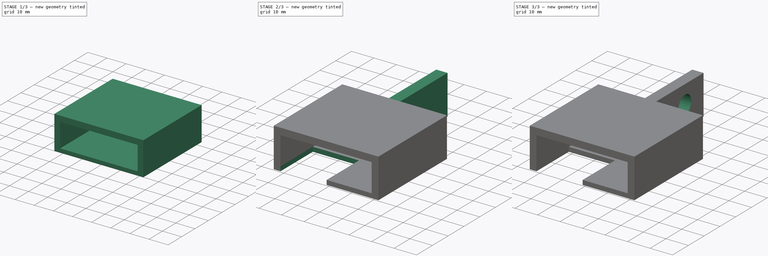
[diagram: build sequence overview — one tinted view per stage of 3, left to right]
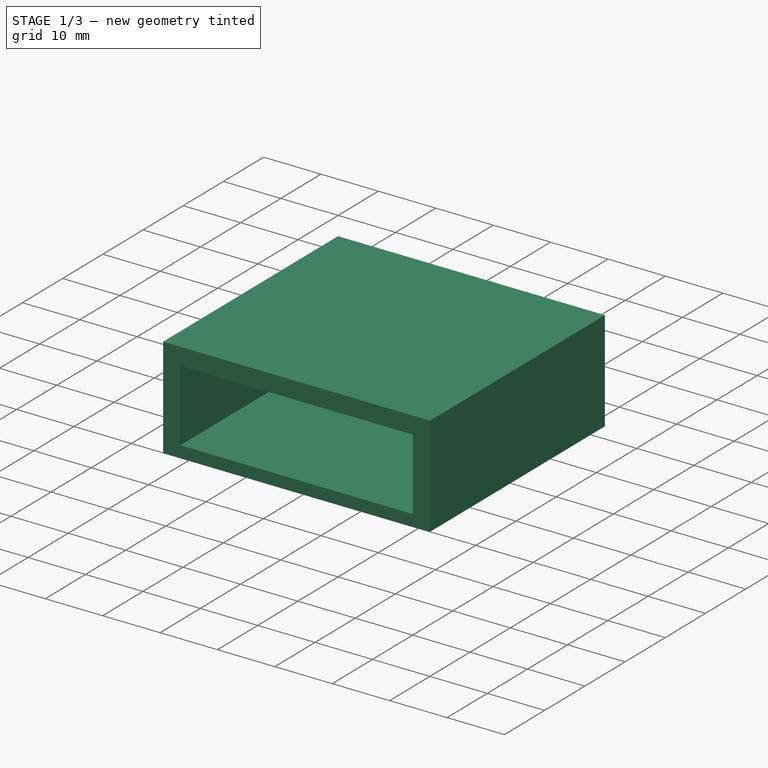
[diagram: stage 1 of 3 — iso view after this stage's code; geometry added in this stage tinted green]
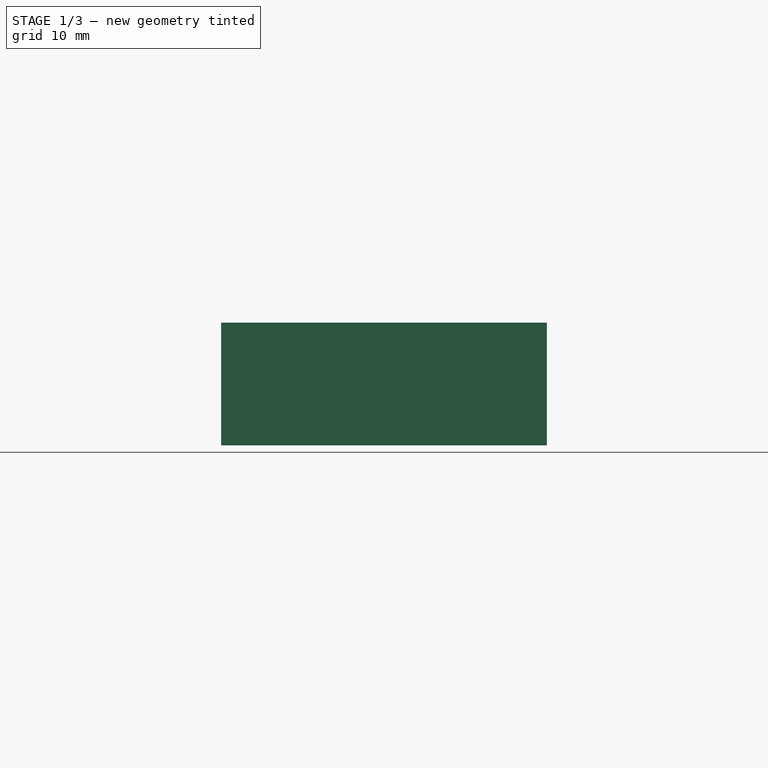
[diagram: stage 1 of 3 — front view after this stage's code; geometry added in this stage tinted green]
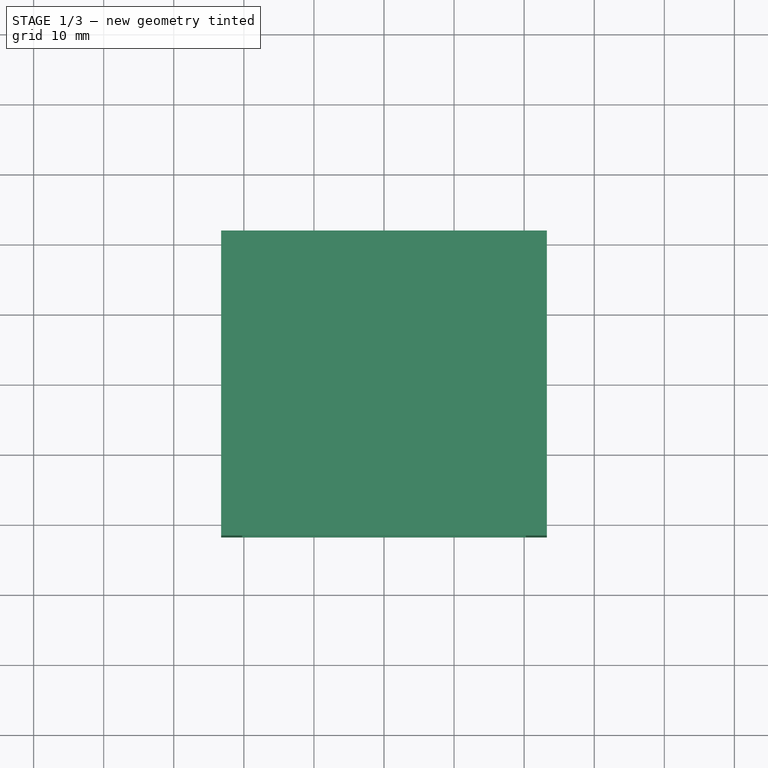
[diagram: stage 1 of 3 — top view after this stage's code; geometry added in this stage tinted green]
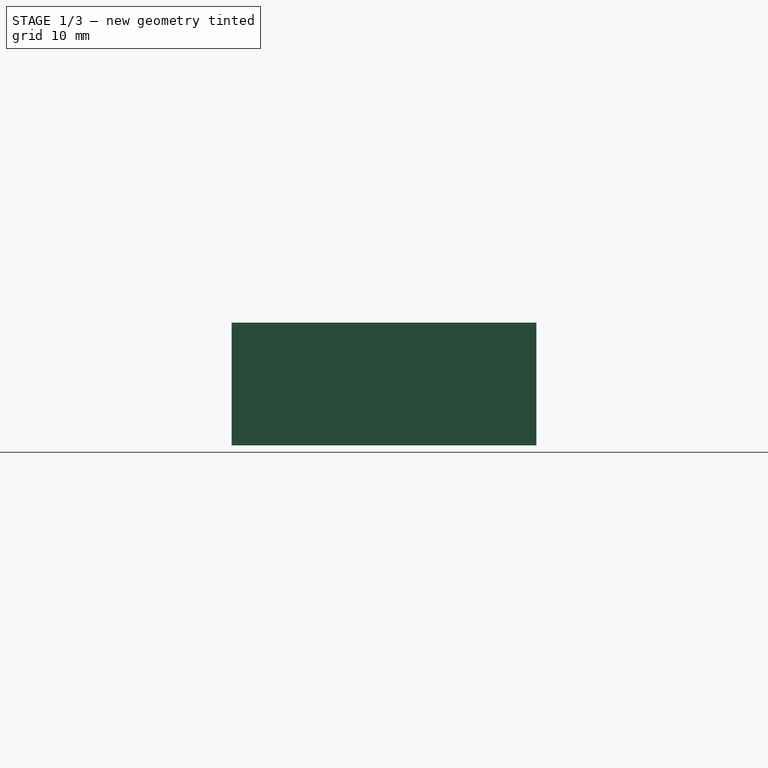
[diagram: stage 1 of 3 — right view after this stage's code; geometry added in this stage tinted green]
FCSTD DOCUMENT  (FreeCAD 0.18.4R)
Label: Peltier_Arm
License: All rights reserved
LicenseURL: http://en.wikipedia.org/wiki/All_rights_reserved
objects: Sketcher::SketchObject×5, PartDesign::Pocket×4, PartDesign::Pad×2, PartDesign::Body×1
note: 18 computed .brp shape members not serialized (recipe doc carries the construction recipe); baked Part::Feature solids carry a one-line shape summary decoded from their .brp

FEATURE [Sketcher::SketchObject] Sketch
  MapMode = 5
  Support = -> [XY_Plane]
  sketch-geometry (4):
    g0: LineSegment StartX=-23.25 StartY=21.75 StartZ=0 EndX=23.25 EndY=21.75 EndZ=0
    g1: LineSegment StartX=23.25 StartY=21.75 StartZ=0 EndX=23.25 EndY=-21.75 EndZ=0
    g2: LineSegment StartX=23.25 StartY=-21.75 StartZ=0 EndX=-23.25 EndY=-21.75 EndZ=0
    g3: LineSegment StartX=-23.25 StartY=-21.75 StartZ=0 EndX=-23.25 EndY=21.75 EndZ=0
  constraints (12):
    c: Coincident(g0,g1)
    c: Coincident(g1,g2)
    c: Coincident(g2,g3)
    c: Coincident(g3,g0)
    c: Horizontal(g0)
    c: Horizontal(g2)
    c: Vertical(g1)
    c: Vertical(g3)
    c: Distance(g0) = 46.5
    c: Distance(g1) = 43.5
    c: DistanceX(g0,g-1) = 23.25
    c: DistanceY(g1,g-1) = 21.75
FEATURE [PartDesign::Pad] Pad
  Length = 17.5
  Length2 = 100
  Profile = -> Sketch
  Type = 0
FEATURE [Sketcher::SketchObject] Sketch001
  MapMode = 5
  Placement = pos=(0,-21.75,0) rot=(1,0,0;1.5708rad)
  Support = -> [Pad]
  sketch-geometry (4):
    g0: LineSegment StartX=-20.25 StartY=14.5 StartZ=0 EndX=20.25 EndY=14.5 EndZ=0
    g1: LineSegment StartX=20.25 StartY=14.5 StartZ=0 EndX=20.25 EndY=2 EndZ=0
    g2: LineSegment StartX=20.25 StartY=2 StartZ=0 EndX=-20.25 EndY=2 EndZ=0
    g3: LineSegment StartX=-20.25 StartY=2 StartZ=0 EndX=-20.25 EndY=14.5 EndZ=0
  constraints (12):
    c: Coincident(g0,g1)
    c: Coincident(g1,g2)
    c: Coincident(g2,g3)
    c: Coincident(g3,g0)
    c: Horizontal(g0)
    c: Horizontal(g2)
    c: Vertical(g1)
    c: Vertical(g3)
    c: Distance(g0) = 40.5
    c: DistanceX(g2,g-1) = 20.25
    c: Distance(g1) = 12.5
    c: DistanceY(g-1,g1) = 2
FEATURE [PartDesign::Pocket] Pocket
  BaseFeature = -> Pad
  Length = 40.5
  Length2 = 100
  Profile = -> Sketch001
  Type = 0
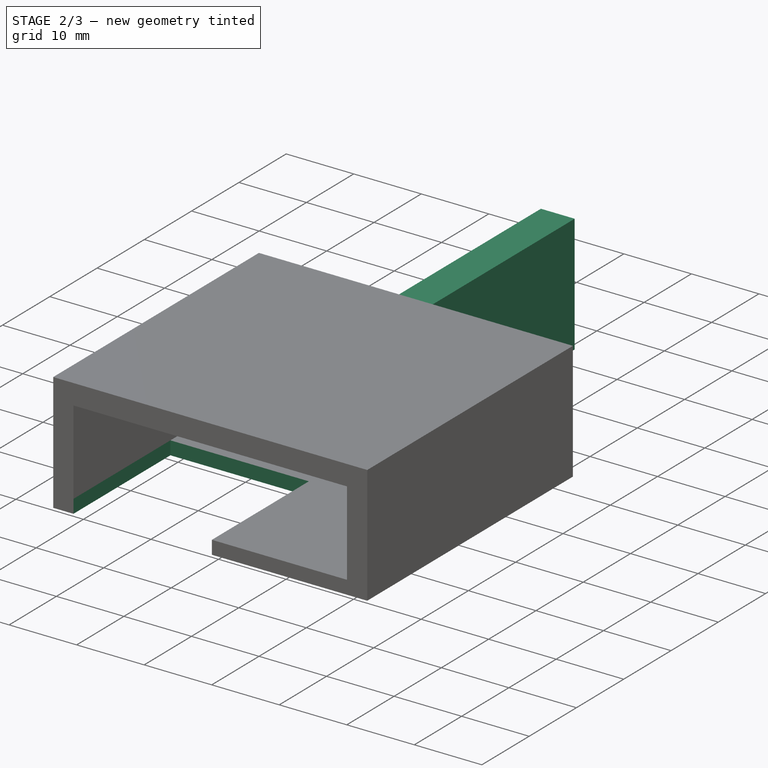
[diagram: stage 2 of 3 — iso view after this stage's code; geometry added in this stage tinted green]
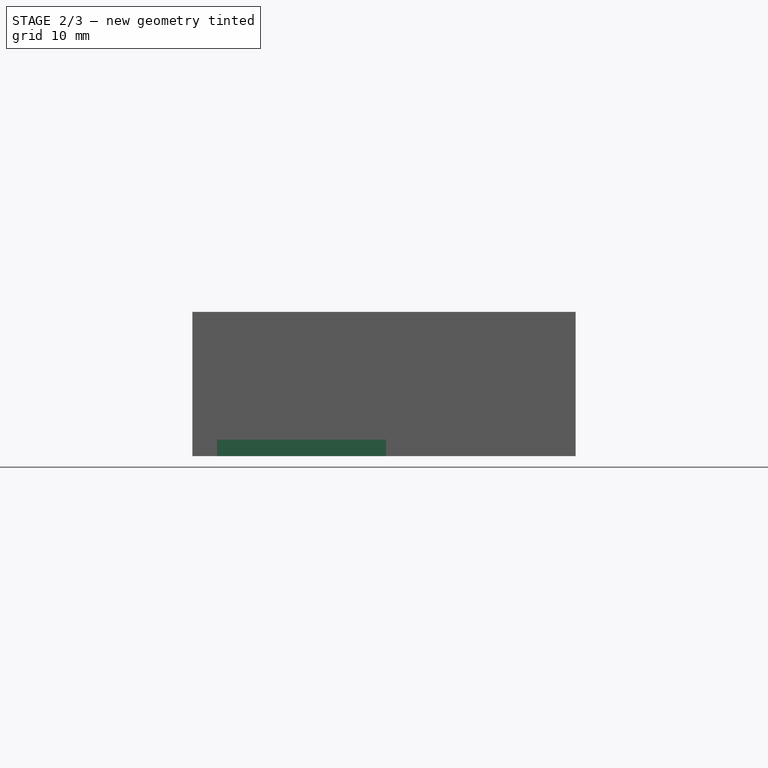
[diagram: stage 2 of 3 — front view after this stage's code; geometry added in this stage tinted green]
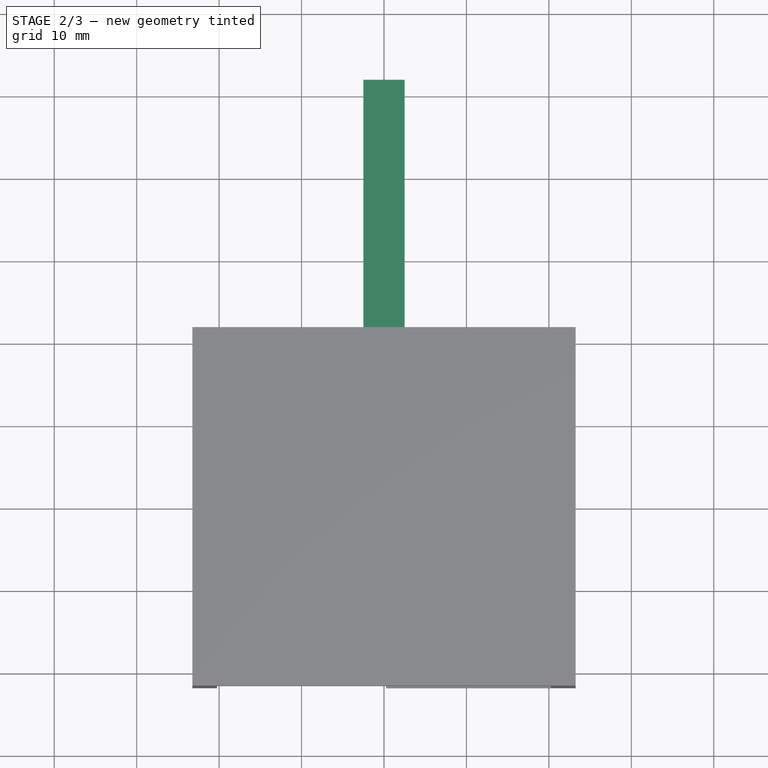
[diagram: stage 2 of 3 — top view after this stage's code; geometry added in this stage tinted green]
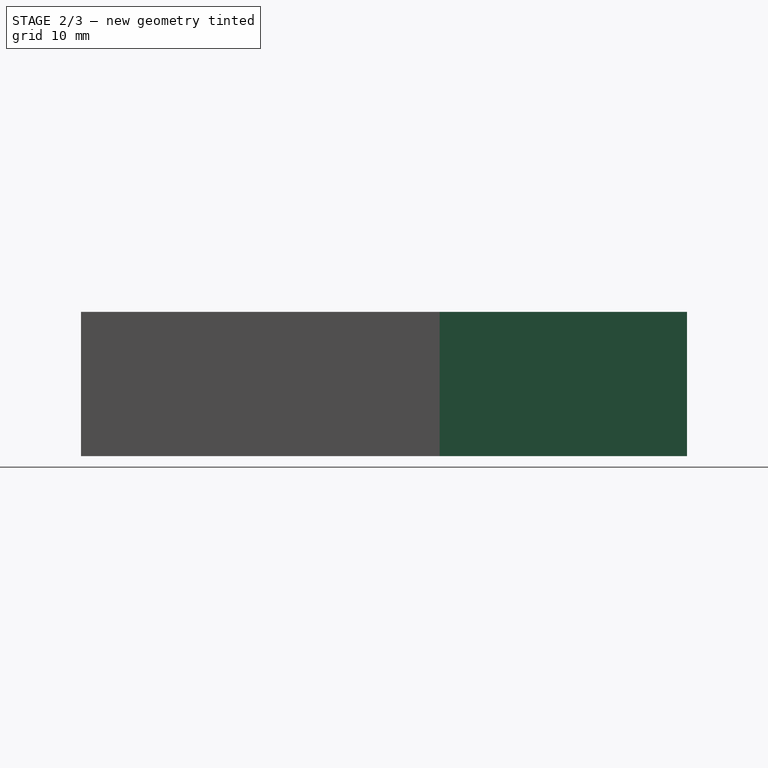
[diagram: stage 2 of 3 — right view after this stage's code; geometry added in this stage tinted green]
FEATURE [Sketcher::SketchObject] Sketch002
  MapMode = 5
  Placement = pos=(0,0,0) rot=(1,0,0;3.14159rad)
  Support = -> [Pocket]
  sketch-geometry (4):
    g0: LineSegment StartX=0.25 StartY=1.25 StartZ=0 EndX=-20.25 EndY=1.25 EndZ=0
    g1: LineSegment StartX=-20.25 StartY=1.25 StartZ=0 EndX=-20.25 EndY=21.75 EndZ=0
    g2: LineSegment StartX=-20.25 StartY=21.75 StartZ=0 EndX=0.25 EndY=21.75 EndZ=0
    g3: LineSegment StartX=0.25 StartY=21.75 StartZ=0 EndX=0.25 EndY=1.25 EndZ=0
  constraints (12):
    c: Coincident(g0,g1)
    c: Coincident(g1,g2)
    c: Coincident(g2,g3)
    c: Coincident(g3,g0)
    c: Horizontal(g0)
    c: Horizontal(g2)
    c: Vertical(g1)
    c: Vertical(g3)
    c: Distance(g0) = 20.5
    c: Distance(g1) = 20.5
    c: DistanceY(g-1,g1) = 21.75
    c: DistanceX(g-1,g0) = 0.25
FEATURE [PartDesign::Pocket] Pocket001
  BaseFeature = -> Pocket
  Length = 3
  Length2 = 100
  Profile = -> Sketch002
  Type = 0
FEATURE [Sketcher::SketchObject] Sketch003
  MapMode = 5
  Placement = pos=(0,0,17.5) rot=(0,0,1;0rad)
  Support = -> [Pocket001]
  sketch-geometry (4):
    g0: LineSegment StartX=-2.5 StartY=51.75 StartZ=0 EndX=2.5 EndY=51.75 EndZ=0
    g1: LineSegment StartX=2.5 StartY=51.75 StartZ=0 EndX=2.5 EndY=21.75 EndZ=0
    g2: LineSegment StartX=2.5 StartY=21.75 StartZ=0 EndX=-2.5 EndY=21.75 EndZ=0
    g3: LineSegment StartX=-2.5 StartY=21.75 StartZ=0 EndX=-2.5 EndY=51.75 EndZ=0
  constraints (12):
    c: Coincident(g0,g1)
    c: Coincident(g1,g2)
    c: Coincident(g2,g3)
    c: Coincident(g3,g0)
    c: Horizontal(g0)
    c: Horizontal(g2)
    c: Vertical(g1)
    c: Vertical(g3)
    c: Distance(g0) = 5
    c: DistanceY(g-1,g2) = 21.75
    c: DistanceX(g2,g-1) = 2.5
    c: Distance(g1) = 30
FEATURE [PartDesign::Pad] Pad001
  BaseFeature = -> Pocket001
  Length = 17.5
  Length2 = 100
  Profile = -> Sketch003
  Reversed = true
  Type = 0
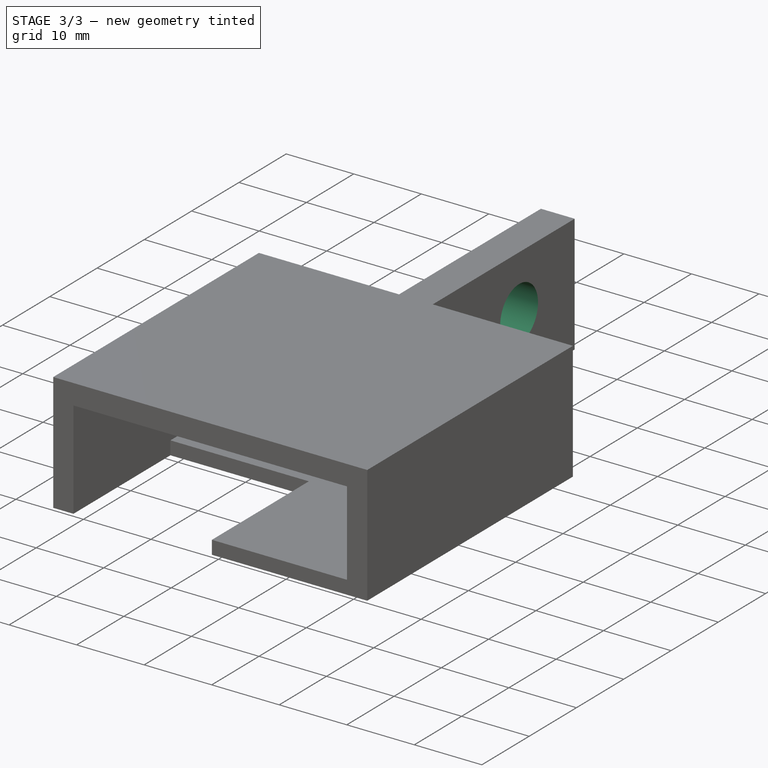
[diagram: stage 3 of 3 — iso view after this stage's code; geometry added in this stage tinted green]
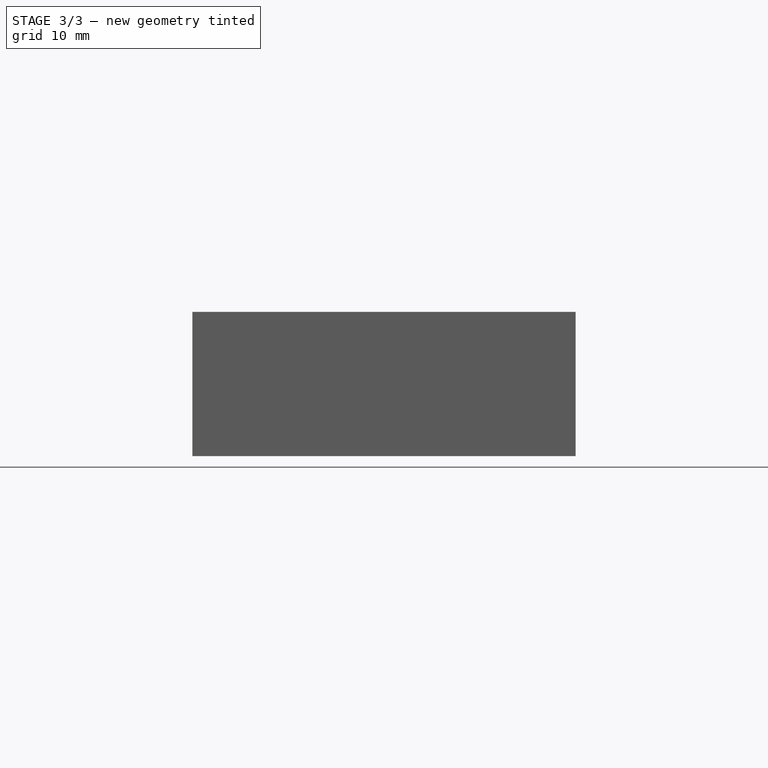
[diagram: stage 3 of 3 — front view after this stage's code; geometry added in this stage tinted green]
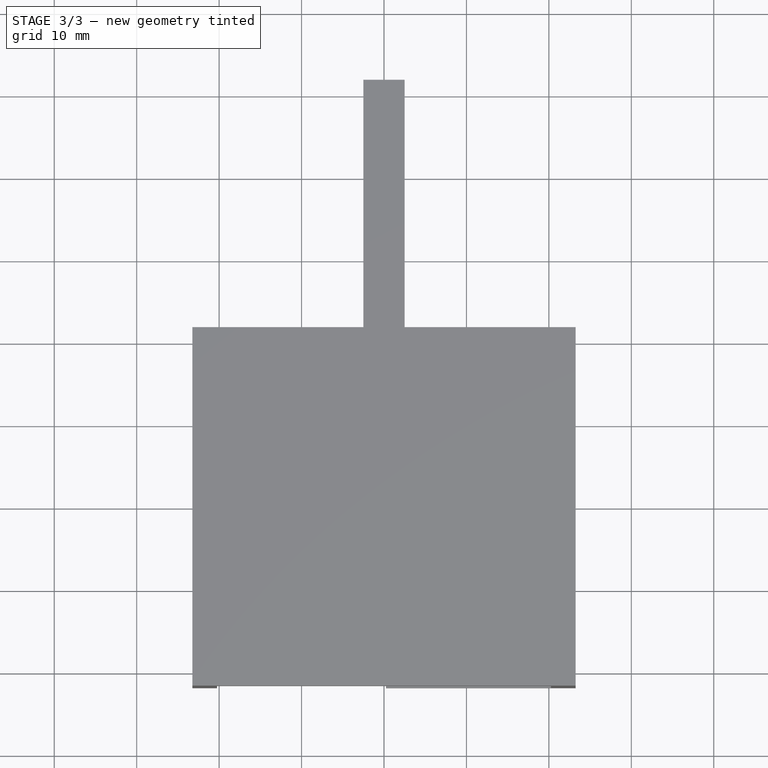
[diagram: stage 3 of 3 — top view after this stage's code; geometry added in this stage tinted green]
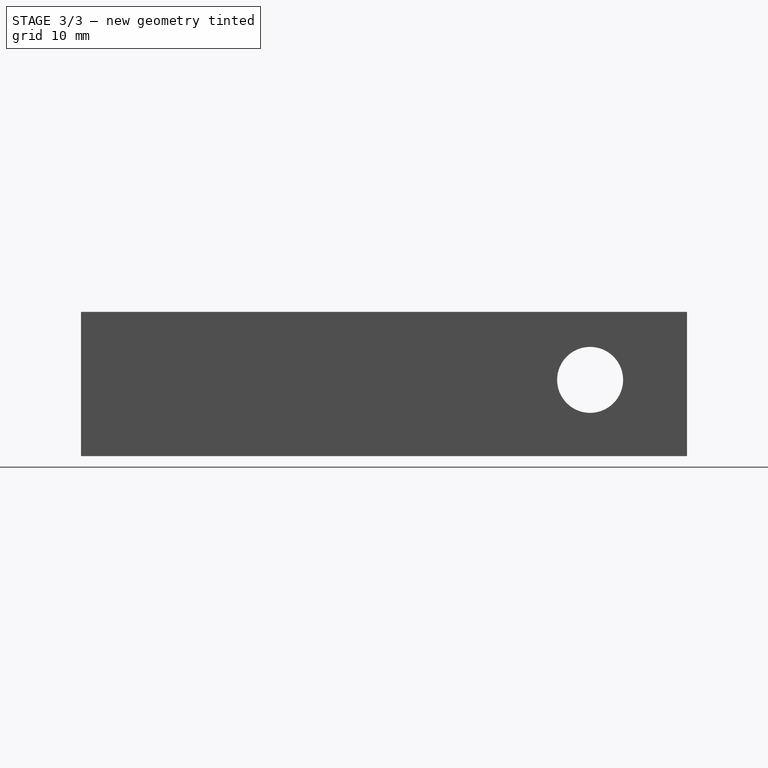
[diagram: stage 3 of 3 — right view after this stage's code; geometry added in this stage tinted green]
FEATURE [Sketcher::SketchObject] Sketch004
  MapMode = 5
  Placement = pos=(-20.25,0,0) rot=(0.57735,0.57735,0.57735;2.0944rad)
  Support = -> [Pad001]
  sketch-geometry (1):
    g0: Circle CenterX=40 CenterY=9.25 CenterZ=0 NormalX=0 NormalY=0 NormalZ=1 AngleXU=0 Radius=4
  constraints (3):
    c: Diameter(g0) = 8
    c: DistanceX(g-1,g0) = 40
    c: DistanceY(g-1,g0) = 9.25
FEATURE [PartDesign::Pocket] Pocket002
  BaseFeature = -> Pad001
  Length = 5
  Length2 = 100
  Profile = -> Sketch004
  Type = 0
FEATURE [PartDesign::Pocket] Pocket003
  BaseFeature = -> Pocket002
  Length = 100
  Length2 = 100
  Profile = -> Sketch004
  Reversed = true
  Type = 0
FEATURE [PartDesign::Body] Body
  Group = -> [Sketch,Pad,Sketch001,Pocket,Sketch002,Pocket001,Sketch003,Pad001,Sketch004,Pocket002,Pocket003]
  Origin = -> Origin
  Tip = -> Pocket003
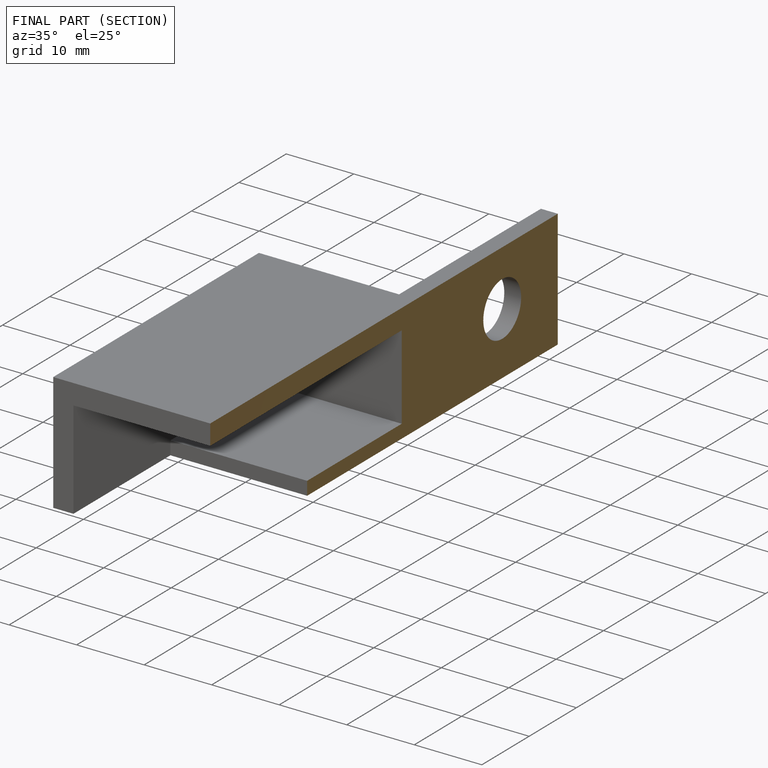
[diagram: finished part — half-section view (interior)]
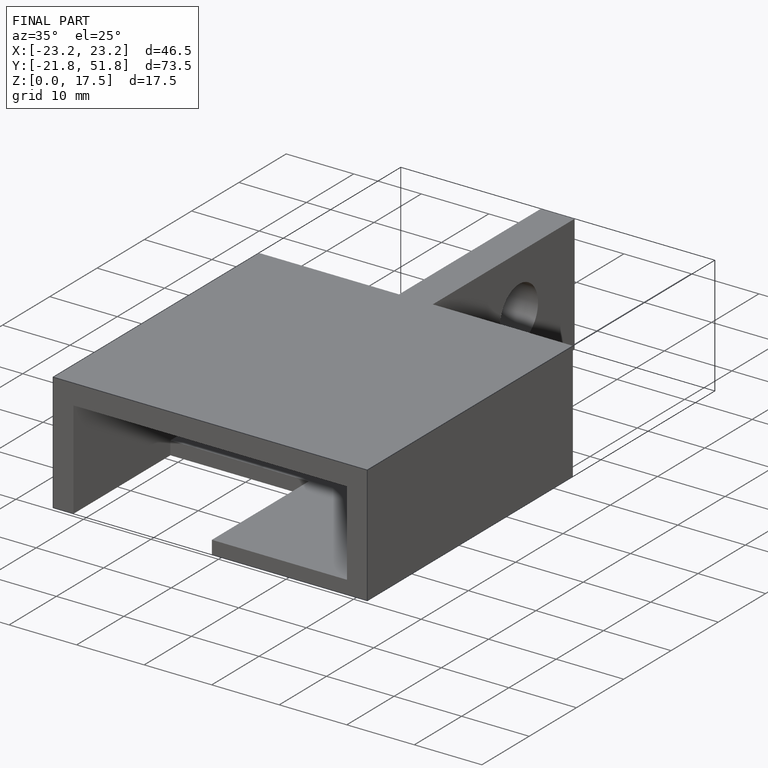
[diagram: finished part — iso view with bounding-box wireframe]
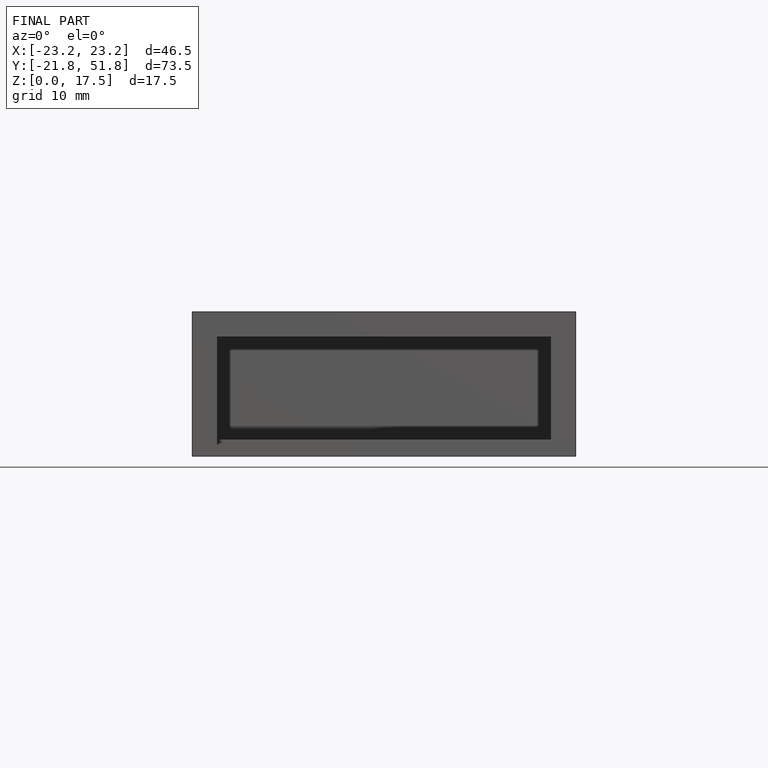
[diagram: finished part — front view with bounding-box wireframe]
